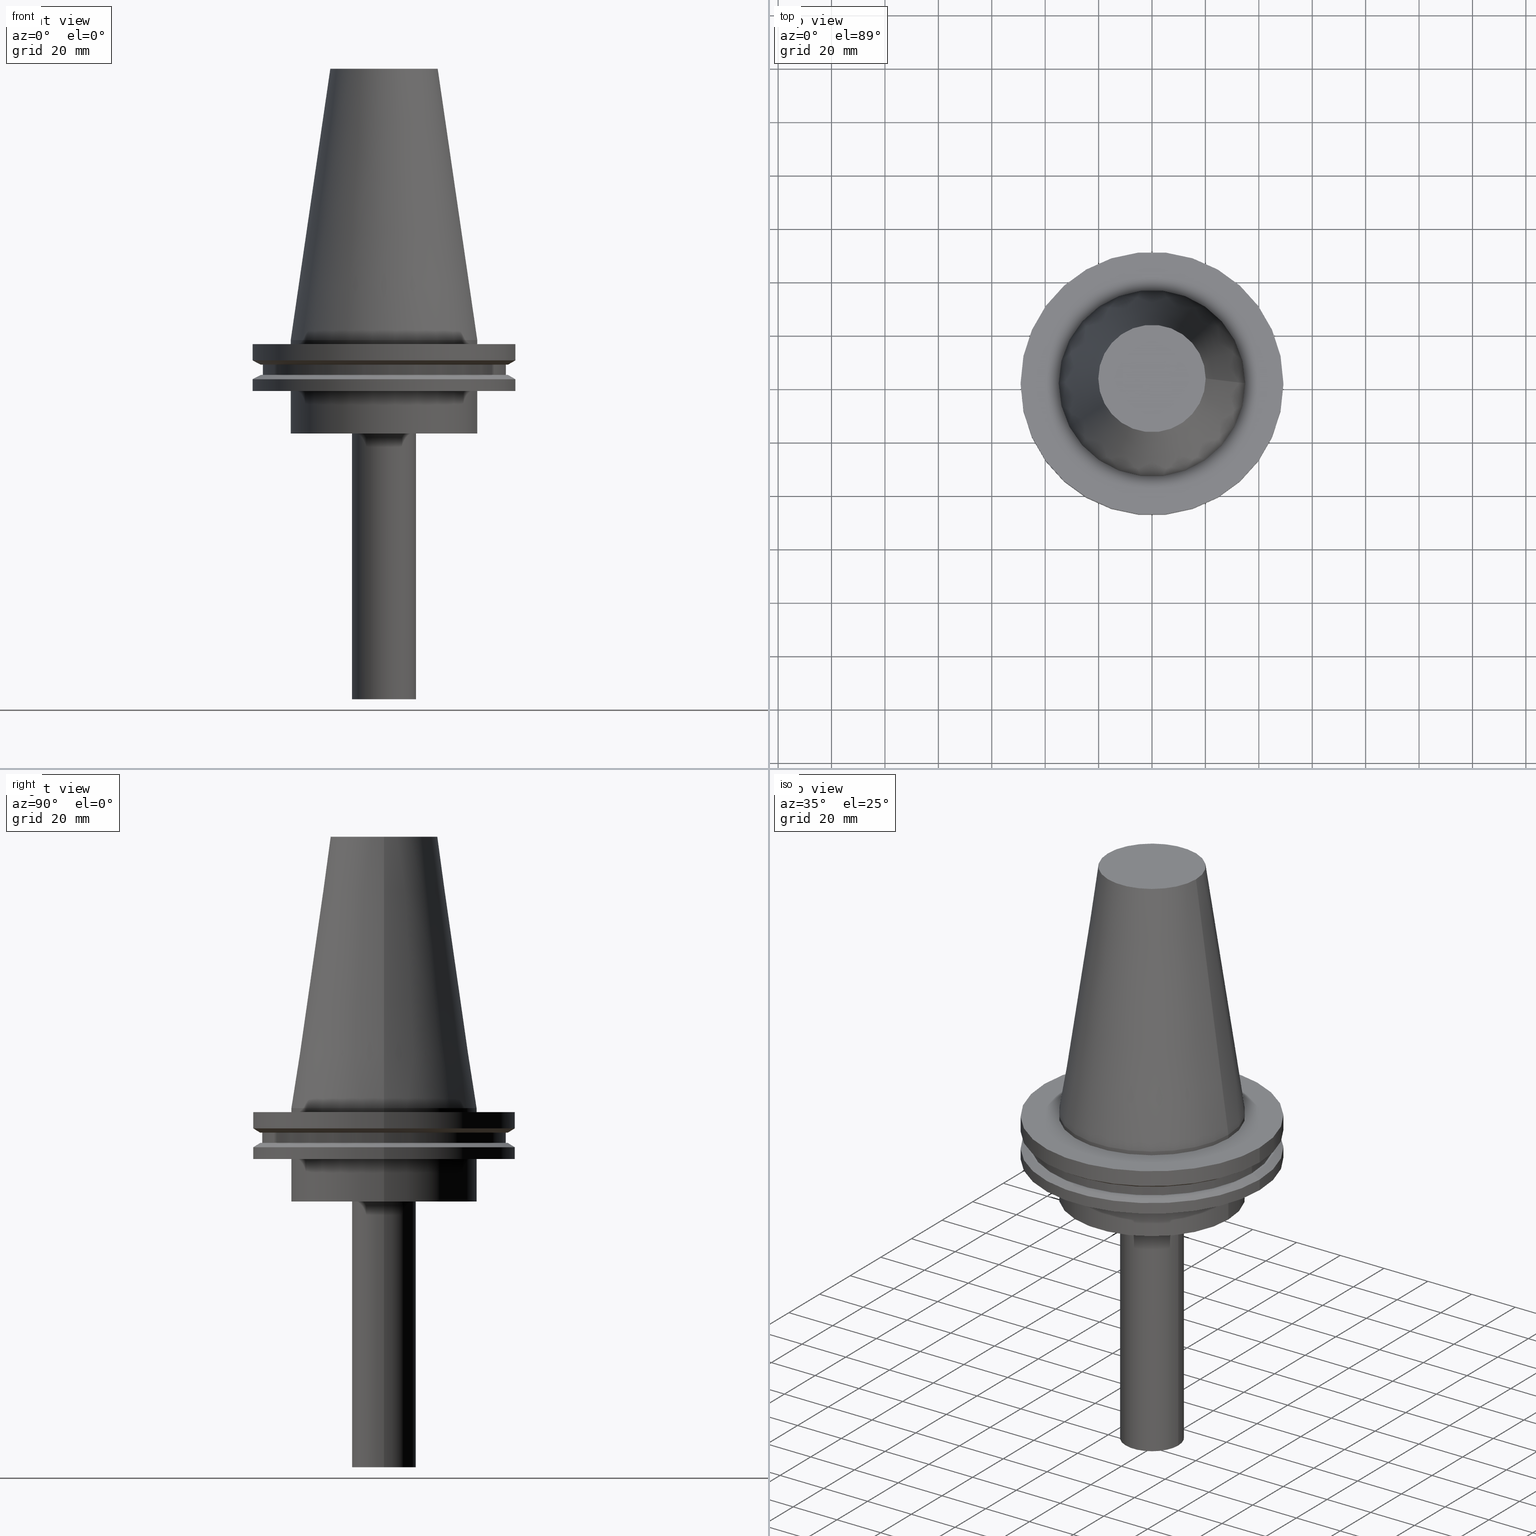
[diagram: canonical four-view strip — front | top / right | iso, engineering-drawing reading convention]
A machine part, canonical four-view strip (front | top / right | iso — engineering-drawing reading convention). The complete STEP part file that produces these views, byte-faithful:
ISO-10303-21;
HEADER;
FILE_DESCRIPTION (( 'STEP AP203' ),
    '1' );
FILE_NAME ('11.326.623.stp',
    '2022-03-09T14:49:54',
    ( '' ),
    ( '' ),
    'SwSTEP 2.0',
    'SolidWorks 2021',
    '' );
FILE_SCHEMA (( 'CONFIG_CONTROL_DESIGN' ));
ENDSEC;

DATA;
#1 = CARTESIAN_POINT ( 'NONE',  ( 0.000000000000000000, 0.000000000000000000, -134.5000000000000000 ) ) ;
#2 = VERTEX_POINT ( 'NONE', #346 ) ;
#3 = CARTESIAN_POINT ( 'NONE',  ( 46.43919780457007818, 0.000000000000000000, -13.05499999999999794 ) ) ;
#4 = ORIENTED_EDGE ( 'NONE', *, *, #171, .F. ) ;
#5 = CARTESIAN_POINT ( 'NONE',  ( 0.000000000000000000, 0.000000000000000000, -19.04999999999999716 ) ) ;
#6 = APPROVAL_ROLE ( '' ) ;
#7 = AXIS2_PLACEMENT_3D ( 'NONE', #81, #359, #76 ) ;
#8 = AXIS2_PLACEMENT_3D ( 'NONE', #104, #106, #229 ) ;
#9 = ORIENTED_EDGE ( 'NONE', *, *, #309, .T. ) ;
#10 = FACE_BOUND ( 'NONE', #365, .T. ) ;
#11 = CARTESIAN_POINT ( 'NONE',  ( 0.000000000000000000, 0.000000000000000000, 0.000000000000000000 ) ) ;
#12 = DIRECTION ( 'NONE',  ( 1.000000000000000000, 0.000000000000000000, 0.000000000000000000 ) ) ;
#13 = APPLICATION_PROTOCOL_DEFINITION ( 'international standard', 'config_control_design', 1994, #217 ) ;
#14 = FACE_BOUND ( 'NONE', #58, .T. ) ;
#15 = DIRECTION ( 'NONE',  ( 1.000000000000000000, 0.000000000000000000, 0.000000000000000000 ) ) ;
#16 = AXIS2_PLACEMENT_3D ( 'NONE', #11, #232, #37 ) ;
#17 = AXIS2_PLACEMENT_3D ( 'NONE', #115, #267, #113 ) ;
#18 = FACE_OUTER_BOUND ( 'NONE', #126, .T. ) ;
#19 = CIRCLE ( 'NONE', #296, 12.00000000000000000 ) ;
#20 = DIRECTION ( 'NONE',  ( 0.000000000000000000, -0.000000000000000000, 1.000000000000000000 ) ) ;
#21 = CYLINDRICAL_SURFACE ( 'NONE', #243, 49.21499999999999631 ) ;
#22 = CARTESIAN_POINT ( 'NONE',  ( 0.000000000000000000, 0.000000000000000000, 0.000000000000000000 ) ) ;
#23 = ADVANCED_FACE ( 'NONE', ( #321, #375 ), #70, .F. ) ;
#24 = CYLINDRICAL_SURFACE ( 'NONE', #17, 34.92499999999999716 ) ;
#25 = FACE_BOUND ( 'NONE', #125, .T. ) ;
#26 = EDGE_CURVE ( 'NONE', #281, #281, #19, .T. ) ;
#27 = CIRCLE ( 'NONE', #31, 49.21499999999998920 ) ;
#28 = CIRCLE ( 'NONE', #371, 34.92499999999999005 ) ;
#29 = VERTEX_POINT ( 'NONE', #88 ) ;
#30 = CIRCLE ( 'NONE', #55, 20.10819343178871321 ) ;
#31 = AXIS2_PLACEMENT_3D ( 'NONE', #234, #207, #112 ) ;
#32 = PLANE ( 'NONE',  #341 ) ;
#33 = VERTEX_POINT ( 'NONE', #155 ) ;
#34 = VERTEX_POINT ( 'NONE', #3 ) ;
#35 = DIRECTION ( 'NONE',  ( 1.000000000000000000, 0.000000000000000000, 0.000000000000000000 ) ) ;
#36 = FACE_BOUND ( 'NONE', #288, .T. ) ;
#37 = DIRECTION ( 'NONE',  ( 1.000000000000000000, 0.000000000000000000, 0.000000000000000000 ) ) ;
#38 = DIRECTION ( 'NONE',  ( 1.000000000000000000, 0.000000000000000000, 0.000000000000000000 ) ) ;
#39 = CARTESIAN_POINT ( 'NONE',  ( 49.21499999999999631, 0.000000000000000000, -1.499999999999987566 ) ) ;
#40 = MANIFOLD_SOLID_BREP ( 'CKB', #275 ) ;
#41 = EDGE_LOOP ( 'NONE', ( #90 ) ) ;
#42 = PERSON_AND_ORGANIZATION ( #201, #210 ) ;
#43 = CARTESIAN_POINT ( 'NONE',  ( 0.000000000000000000, 46.43919780457007818, -9.204999999999998295 ) ) ;
#44 = DIRECTION ( 'NONE',  ( 1.000000000000000000, 0.000000000000000000, 0.000000000000000000 ) ) ;
#45 = LOCAL_TIME ( 8, 49, 54.00000000000000000, #227 ) ;
#46 = FACE_BOUND ( 'NONE', #64, .T. ) ;
#47 = COORDINATED_UNIVERSAL_TIME_OFFSET ( 6, 0, .BEHIND. ) ;
#48 = ADVANCED_FACE ( 'NONE', ( #14, #139 ), #32, .F. ) ;
#49 = AXIS2_PLACEMENT_3D ( 'NONE', #326, #266, #206 ) ;
#50 = AXIS2_PLACEMENT_3D ( 'NONE', #79, #328, #51 ) ;
#51 = DIRECTION ( 'NONE',  ( 1.000000000000000000, 0.000000000000000000, 0.000000000000000000 ) ) ;
#52 = FACE_OUTER_BOUND ( 'NONE', #245, .T. ) ;
#53 = ADVANCED_FACE ( 'NONE', ( #160, #231 ), #352, .T. ) ;
#54 = FACE_OUTER_BOUND ( 'NONE', #101, .T. ) ;
#55 = AXIS2_PLACEMENT_3D ( 'NONE', #265, #343, #383 ) ;
#56 = DIRECTION ( 'NONE',  ( 1.000000000000000000, 0.000000000000000000, 0.000000000000000000 ) ) ;
#57 = CARTESIAN_POINT ( 'NONE',  ( 0.000000000000000000, 0.000000000000000000, -1.499999999999987566 ) ) ;
#58 = EDGE_LOOP ( 'NONE', ( #317 ) ) ;
#59 = AXIS2_PLACEMENT_3D ( 'NONE', #240, #169, #332 ) ;
#60 = EDGE_LOOP ( 'NONE', ( #87 ) ) ;
#61 = ORIENTED_EDGE ( 'NONE', *, *, #149, .F. ) ;
#62 = APPROVAL_PERSON_ORGANIZATION ( #197, #241, #161 ) ;
#63 = CARTESIAN_POINT ( 'NONE',  ( 34.92499999999999005, 0.000000000000000000, 0.000000000000000000 ) ) ;
#64 = EDGE_LOOP ( 'NONE', ( #323 ) ) ;
#65 = CARTESIAN_POINT ( 'NONE',  ( 49.21499999999998920, 0.000000000000000000, -14.65761014474876944 ) ) ;
#66 = CIRCLE ( 'NONE', #222, 34.92499999999999005 ) ;
#67 = EDGE_LOOP ( 'NONE', ( #9 ) ) ;
#68 = DIRECTION ( 'NONE',  ( -0.000000000000000000, -0.000000000000000000, 1.000000000000000000 ) ) ;
#69 =( NAMED_UNIT ( * ) SI_UNIT ( $, .STERADIAN. ) SOLID_ANGLE_UNIT ( ) );
#70 = PLANE ( 'NONE',  #132 ) ;
#71 = CARTESIAN_POINT ( 'NONE',  ( 49.21499999999998920, 0.000000000000000000, -19.04999999999999716 ) ) ;
#72 = EDGE_LOOP ( 'NONE', ( #180 ) ) ;
#73 = ORIENTED_EDGE ( 'NONE', *, *, #387, .T. ) ;
#74 = PLANE ( 'NONE',  #381 ) ;
#75 = PERSON_AND_ORGANIZATION_ROLE ( 'creator' ) ;
#76 = DIRECTION ( 'NONE',  ( 1.000000000000000000, 0.000000000000000000, 0.000000000000000000 ) ) ;
#77 = ADVANCED_FACE ( 'NONE', ( #133, #188 ), #342, .T. ) ;
#78 = PERSON_AND_ORGANIZATION_ROLE ( 'design_supplier' ) ;
#79 = CARTESIAN_POINT ( 'NONE',  ( 0.000000000000000000, 0.000000000000000000, -13.05499999999999794 ) ) ;
#80 = AXIS2_PLACEMENT_3D ( 'NONE', #392, #120, #212 ) ;
#81 = CARTESIAN_POINT ( 'NONE',  ( 0.000000000000000000, 0.000000000000000000, 101.5999999999999943 ) ) ;
#82 = AXIS2_PLACEMENT_3D ( 'NONE', #283, #249, #35 ) ;
#83 = DIRECTION ( 'NONE',  ( 0.000000000000000000, 0.000000000000000000, -1.000000000000000000 ) ) ;
#84 = DIRECTION ( 'NONE',  ( -0.000000000000000000, -0.000000000000000000, 1.000000000000000000 ) ) ;
#85 =( GEOMETRIC_REPRESENTATION_CONTEXT ( 3 ) GLOBAL_UNCERTAINTY_ASSIGNED_CONTEXT ( ( #299 ) ) GLOBAL_UNIT_ASSIGNED_CONTEXT ( ( #370, #165, #69 ) ) REPRESENTATION_CONTEXT ( 'NONE', 'WORKASPACE' ) );
#86 = PLANE ( 'NONE',  #100 ) ;
#87 = ORIENTED_EDGE ( 'NONE', *, *, #171, .T. ) ;
#88 = CARTESIAN_POINT ( 'NONE',  ( 34.92499999999999716, 0.000000000000000000, -35.00000000000000000 ) ) ;
#89 = PRODUCT ( '11.326.623', '11.326.623', '', ( #374 ) ) ;
#90 = ORIENTED_EDGE ( 'NONE', *, *, #93, .F. ) ;
#91 = CONICAL_SURFACE ( 'NONE', #49, 49.21499999999998920, 1.047197551196554333 ) ;
#92 = VERTEX_POINT ( 'NONE', #316 ) ;
#93 = EDGE_CURVE ( 'NONE', #318, #318, #357, .T. ) ;
#94 = ORIENTED_EDGE ( 'NONE', *, *, #291, .T. ) ;
#95 = PRODUCT_DEFINITION ( 'UNKNOWN', '', #360, #153 ) ;
#96 = ORIENTED_EDGE ( 'NONE', *, *, #309, .F. ) ;
#97 = CC_DESIGN_SECURITY_CLASSIFICATION ( #391, ( #360 ) ) ;
#98 = EDGE_LOOP ( 'NONE', ( #305 ) ) ;
#99 = EDGE_CURVE ( 'NONE', #33, #33, #237, .T. ) ;
#100 = AXIS2_PLACEMENT_3D ( 'NONE', #273, #304, #179 ) ;
#101 = EDGE_LOOP ( 'NONE', ( #215 ) ) ;
#102 = PERSON_AND_ORGANIZATION_ROLE ( 'design_owner' ) ;
#103 = APPROVAL ( #286, 'UNSPECIFIED' ) ;
#104 = CARTESIAN_POINT ( 'NONE',  ( 0.000000000000000000, 0.000000000000000000, -14.65761014474876944 ) ) ;
#105 = PERSON_AND_ORGANIZATION ( #201, #210 ) ;
#106 = DIRECTION ( 'NONE',  ( -0.000000000000000000, -0.000000000000000000, 1.000000000000000000 ) ) ;
#107 = DIRECTION ( 'NONE',  ( 0.000000000000000000, -0.000000000000000000, 1.000000000000000000 ) ) ;
#108 = ADVANCED_FACE ( 'NONE', ( #46, #54 ), #187, .T. ) ;
#109 = CARTESIAN_POINT ( 'NONE',  ( 0.000000000000000000, 0.000000000000000000, 101.5999999999999943 ) ) ;
#110 = CARTESIAN_POINT ( 'NONE',  ( 12.00000000000000000, 0.000000000000000000, -134.5000000000000000 ) ) ;
#111 = COORDINATED_UNIVERSAL_TIME_OFFSET ( 6, 0, .BEHIND. ) ;
#112 = DIRECTION ( 'NONE',  ( 1.000000000000000000, 0.000000000000000000, 0.000000000000000000 ) ) ;
#113 = DIRECTION ( 'NONE',  ( 1.000000000000000000, 0.000000000000000000, 0.000000000000000000 ) ) ;
#114 = ADVANCED_FACE ( 'NONE', ( #297, #389 ), #24, .T. ) ;
#115 = CARTESIAN_POINT ( 'NONE',  ( 0.000000000000000000, 0.000000000000000000, 101.5999999999999943 ) ) ;
#116 = CC_DESIGN_PERSON_AND_ORGANIZATION_ASSIGNMENT ( #260, #75, ( #360 ) ) ;
#117 = CARTESIAN_POINT ( 'NONE',  ( 0.000000000000000000, 0.000000000000000000, 101.5999999999999943 ) ) ;
#118 = FACE_OUTER_BOUND ( 'NONE', #157, .T. ) ;
#119 = ADVANCED_FACE ( 'NONE', ( #390, #268 ), #91, .T. ) ;
#120 = DIRECTION ( 'NONE',  ( 0.000000000000000000, 0.000000000000000000, -1.000000000000000000 ) ) ;
#121 = AXIS2_PLACEMENT_3D ( 'NONE', #358, #148, #386 ) ;
#122 = CIRCLE ( 'NONE', #141, 46.43919780457007818 ) ;
#123 = EDGE_LOOP ( 'NONE', ( #192 ) ) ;
#124 = CIRCLE ( 'NONE', #292, 34.92499999999999716 ) ;
#125 = EDGE_LOOP ( 'NONE', ( #366 ) ) ;
#126 = EDGE_LOOP ( 'NONE', ( #276 ) ) ;
#127 = DIRECTION ( 'NONE',  ( -0.000000000000000000, -0.000000000000000000, 1.000000000000000000 ) ) ;
#128 = DATE_AND_TIME ( #170, #204 ) ;
#129 = ORIENTED_EDGE ( 'NONE', *, *, #163, .F. ) ;
#130 = FACE_OUTER_BOUND ( 'NONE', #339, .T. ) ;
#131 = PERSON_AND_ORGANIZATION_ROLE ( 'creator' ) ;
#132 = AXIS2_PLACEMENT_3D ( 'NONE', #43, #194, #12 ) ;
#133 = FACE_OUTER_BOUND ( 'NONE', #372, .T. ) ;
#134 = VERTEX_POINT ( 'NONE', #71 ) ;
#135 = CALENDAR_DATE ( 2022, 9, 3 ) ;
#136 = APPLICATION_CONTEXT ( 'configuration controlled 3d designs of mechanical parts and assemblies' ) ;
#137 = CARTESIAN_POINT ( 'NONE',  ( 0.000000000000000000, 49.21499999999999631, -1.499999999999992895 ) ) ;
#138 = DATE_AND_TIME ( #322, #45 ) ;
#139 = FACE_OUTER_BOUND ( 'NONE', #60, .T. ) ;
#140 = DIRECTION ( 'NONE',  ( 1.000000000000000000, 0.000000000000000000, 0.000000000000000000 ) ) ;
#141 = AXIS2_PLACEMENT_3D ( 'NONE', #315, #68, #15 ) ;
#142 = DIRECTION ( 'NONE',  ( -0.000000000000000000, -0.000000000000000000, 1.000000000000000000 ) ) ;
#143 = ADVANCED_FACE ( 'NONE', ( #385, #202 ), #300, .F. ) ;
#144 = DIRECTION ( 'NONE',  ( -1.000000000000000000, 0.000000000000000000, 0.000000000000000000 ) ) ;
#145 = DIRECTION ( 'NONE',  ( -0.000000000000000000, -0.000000000000000000, 1.000000000000000000 ) ) ;
#146 = CARTESIAN_POINT ( 'NONE',  ( 0.000000000000000000, 49.21499999999998920, -19.04999999999999716 ) ) ;
#147 = PRODUCT_DEFINITION_SHAPE ( 'NONE', 'NONE',  #95 ) ;
#148 = DIRECTION ( 'NONE',  ( -0.000000000000000000, -0.000000000000000000, 1.000000000000000000 ) ) ;
#149 = EDGE_CURVE ( 'NONE', #2, #2, #211, .T. ) ;
#150 = FACE_OUTER_BOUND ( 'NONE', #98, .T. ) ;
#151 = ORIENTED_EDGE ( 'NONE', *, *, #149, .T. ) ;
#152 = APPROVAL ( #347, 'UNSPECIFIED' ) ;
#153 = DESIGN_CONTEXT ( 'detailed design', #217, 'design' ) ;
#154 = DIRECTION ( 'NONE',  ( -0.000000000000000000, -0.000000000000000000, 1.000000000000000000 ) ) ;
#155 = CARTESIAN_POINT ( 'NONE',  ( 46.43919780457007818, 0.000000000000000000, -9.204999999999991189 ) ) ;
#156 = CARTESIAN_POINT ( 'NONE',  ( 34.92499999999999716, 0.000000000000000000, -19.04999999999999716 ) ) ;
#157 = EDGE_LOOP ( 'NONE', ( #252 ) ) ;
#158 = DIRECTION ( 'NONE',  ( -0.000000000000000000, -0.000000000000000000, 1.000000000000000000 ) ) ;
#159 = APPLICATION_PROTOCOL_DEFINITION ( 'international standard', 'config_control_design', 1994, #136 ) ;
#160 = FACE_OUTER_BOUND ( 'NONE', #348, .T. ) ;
#161 = APPROVAL_ROLE ( '' ) ;
#162 = ORIENTED_EDGE ( 'NONE', *, *, #189, .T. ) ;
#163 = EDGE_CURVE ( 'NONE', #134, #134, #27, .T. ) ;
#164 = DIRECTION ( 'NONE',  ( -0.000000000000000000, -0.000000000000000000, 1.000000000000000000 ) ) ;
#165 =( NAMED_UNIT ( * ) PLANE_ANGLE_UNIT ( ) SI_UNIT ( $, .RADIAN. ) );
#166 = ORIENTED_EDGE ( 'NONE', *, *, #93, .T. ) ;
#167 = DIRECTION ( 'NONE',  ( 1.000000000000000000, 0.000000000000000000, 0.000000000000000000 ) ) ;
#168 = PERSON_AND_ORGANIZATION ( #201, #210 ) ;
#169 = DIRECTION ( 'NONE',  ( -0.000000000000000000, -0.000000000000000000, 1.000000000000000000 ) ) ;
#170 = CALENDAR_DATE ( 2022, 9, 3 ) ;
#171 = EDGE_CURVE ( 'NONE', #319, #319, #251, .T. ) ;
#172 = AXIS2_PLACEMENT_3D ( 'NONE', #369, #127, #223 ) ;
#173 = CARTESIAN_POINT ( 'NONE',  ( 0.000000000000000000, 0.000000000000000000, 0.000000000000000000 ) ) ;
#174 = CC_DESIGN_DATE_AND_TIME_ASSIGNMENT ( #203, #325, ( #95 ) ) ;
#175 = DIRECTION ( 'NONE',  ( -0.000000000000000000, -0.000000000000000000, 1.000000000000000000 ) ) ;
#176 = CYLINDRICAL_SURFACE ( 'NONE', #7, 49.21499999999998920 ) ;
#177 = APPROVAL_PERSON_ORGANIZATION ( #320, #152, #6 ) ;
#178 = DIRECTION ( 'NONE',  ( 1.000000000000000000, 0.000000000000000000, 0.000000000000000000 ) ) ;
#179 = DIRECTION ( 'NONE',  ( -1.000000000000000000, 0.000000000000000000, -0.000000000000000000 ) ) ;
#180 = ORIENTED_EDGE ( 'NONE', *, *, #253, .T. ) ;
#181 = ADVANCED_FACE ( 'NONE', ( #271, #118 ), #176, .T. ) ;
#182 = AXIS2_PLACEMENT_3D ( 'NONE', #238, #233, #354 ) ;
#183 = VERTEX_POINT ( 'NONE', #63 ) ;
#184 = CC_DESIGN_PERSON_AND_ORGANIZATION_ASSIGNMENT ( #224, #131, ( #95 ) ) ;
#185 = EDGE_LOOP ( 'NONE', ( #73 ) ) ;
#186 = CARTESIAN_POINT ( 'NONE',  ( 45.64500000000000313, 0.000000000000000000, -13.05499999999999794 ) ) ;
#187 = CONICAL_SURFACE ( 'NONE', #313, 34.92499999999999005, 0.1448138465474119452 ) ;
#188 = FACE_OUTER_BOUND ( 'NONE', #72, .T. ) ;
#189 = EDGE_CURVE ( 'NONE', #259, #259, #235, .T. ) ;
#190 = FACE_OUTER_BOUND ( 'NONE', #244, .T. ) ;
#191 = CARTESIAN_POINT ( 'NONE',  ( 49.21500000000000341, 0.000000000000000000, -7.602389855251287187 ) ) ;
#192 = ORIENTED_EDGE ( 'NONE', *, *, #364, .T. ) ;
#193 = DIRECTION ( 'NONE',  ( 0.000000000000000000, -0.000000000000000000, 1.000000000000000000 ) ) ;
#194 = DIRECTION ( 'NONE',  ( 0.000000000000000000, -0.000000000000000000, 1.000000000000000000 ) ) ;
#195 = ORIENTED_EDGE ( 'NONE', *, *, #247, .F. ) ;
#196 = FACE_OUTER_BOUND ( 'NONE', #368, .T. ) ;
#197 = PERSON_AND_ORGANIZATION ( #201, #210 ) ;
#198 = EDGE_LOOP ( 'NONE', ( #166 ) ) ;
#199 = CARTESIAN_POINT ( 'NONE',  ( 0.000000000000000000, 34.92499999999999716, -35.00000000000000000 ) ) ;
#200 = APPROVAL_DATE_TIME ( #284, #152 ) ;
#201 = PERSON ( 'UNSPECIFIED', 'UNSPECIFIED', 'UNSPECIFIED', ('UNSPECIFIED'), ('UNSPECIFIED'), ('UNSPECIFIED') ) ;
#202 = FACE_BOUND ( 'NONE', #67, .T. ) ;
#203 = DATE_AND_TIME ( #262, #263 ) ;
#204 = LOCAL_TIME ( 8, 49, 54.00000000000000000, #47 ) ;
#205 = FACE_OUTER_BOUND ( 'NONE', #362, .T. ) ;
#206 = DIRECTION ( 'NONE',  ( -1.000000000000000000, 0.000000000000000000, 0.000000000000000000 ) ) ;
#207 = DIRECTION ( 'NONE',  ( -0.000000000000000000, -0.000000000000000000, 1.000000000000000000 ) ) ;
#208 = ADVANCED_FACE ( 'NONE', ( #52, #18 ), #293, .T. ) ;
#209 = CARTESIAN_POINT ( 'NONE',  ( 0.000000000000000000, 0.000000000000000000, -1.499999999999987566 ) ) ;
#210 = ORGANIZATION ( 'UNSPECIFIED', 'UNSPECIFIED', '' ) ;
#211 = CIRCLE ( 'NONE', #121, 12.00000000000000000 ) ;
#212 = DIRECTION ( 'NONE',  ( -1.000000000000000000, 0.000000000000000000, -0.000000000000000000 ) ) ;
#213 = CC_DESIGN_DATE_AND_TIME_ASSIGNMENT ( #138, #380, ( #391 ) ) ;
#214 = VERTEX_POINT ( 'NONE', #186 ) ;
#215 = ORIENTED_EDGE ( 'NONE', *, *, #239, .T. ) ;
#216 = VERTEX_POINT ( 'NONE', #337 ) ;
#217 = APPLICATION_CONTEXT ( 'configuration controlled 3d designs of mechanical parts and assemblies' ) ;
#218 = CC_DESIGN_APPROVAL ( #103, ( #391 ) ) ;
#219 = ADVANCED_FACE ( 'NONE', ( #301, #205 ), #21, .T. ) ;
#220 = ORIENTED_EDGE ( 'NONE', *, *, #239, .F. ) ;
#221 = DIRECTION ( 'NONE',  ( -1.000000000000000000, 0.000000000000000000, -0.000000000000000000 ) ) ;
#222 = AXIS2_PLACEMENT_3D ( 'NONE', #22, #142, #388 ) ;
#223 = DIRECTION ( 'NONE',  ( 1.000000000000000000, 0.000000000000000000, 0.000000000000000000 ) ) ;
#224 = PERSON_AND_ORGANIZATION ( #201, #210 ) ;
#225 = ORIENTED_EDGE ( 'NONE', *, *, #99, .T. ) ;
#226 = EDGE_LOOP ( 'NONE', ( #4 ) ) ;
#227 = COORDINATED_UNIVERSAL_TIME_OFFSET ( 6, 0, .BEHIND. ) ;
#228 = CC_DESIGN_APPROVAL ( #152, ( #95 ) ) ;
#229 = DIRECTION ( 'NONE',  ( 1.000000000000000000, 0.000000000000000000, 0.000000000000000000 ) ) ;
#230 = COORDINATED_UNIVERSAL_TIME_OFFSET ( 6, 0, .BEHIND. ) ;
#231 = FACE_OUTER_BOUND ( 'NONE', #336, .T. ) ;
#232 = DIRECTION ( 'NONE',  ( 0.000000000000000000, 0.000000000000000000, 1.000000000000000000 ) ) ;
#233 = DIRECTION ( 'NONE',  ( -0.000000000000000000, -0.000000000000000000, 1.000000000000000000 ) ) ;
#234 = CARTESIAN_POINT ( 'NONE',  ( 0.000000000000000000, 0.000000000000000000, -19.04999999999999716 ) ) ;
#235 = CIRCLE ( 'NONE', #59, 49.21500000000000341 ) ;
#236 = AXIS2_PLACEMENT_3D ( 'NONE', #173, #175, #334 ) ;
#237 = CIRCLE ( 'NONE', #393, 46.43919780457007818 ) ;
#238 = CARTESIAN_POINT ( 'NONE',  ( 0.000000000000000000, 0.000000000000000000, -9.204999999999991189 ) ) ;
#239 = EDGE_CURVE ( 'NONE', #183, #183, #66, .T. ) ;
#240 = CARTESIAN_POINT ( 'NONE',  ( 0.000000000000000000, 0.000000000000000000, -7.602389855251287187 ) ) ;
#241 = APPROVAL ( #353, 'UNSPECIFIED' ) ;
#242 = CARTESIAN_POINT ( 'NONE',  ( 0.000000000000000000, 0.000000000000000000, 0.000000000000000000 ) ) ;
#243 = AXIS2_PLACEMENT_3D ( 'NONE', #117, #145, #56 ) ;
#244 = EDGE_LOOP ( 'NONE', ( #261 ) ) ;
#245 = EDGE_LOOP ( 'NONE', ( #61 ) ) ;
#246 = ORIENTED_EDGE ( 'NONE', *, *, #26, .F. ) ;
#247 = EDGE_CURVE ( 'NONE', #92, #92, #294, .T. ) ;
#248 = ORIENTED_EDGE ( 'NONE', *, *, #247, .T. ) ;
#249 = DIRECTION ( 'NONE',  ( -0.000000000000000000, -0.000000000000000000, 1.000000000000000000 ) ) ;
#250 = APPROVAL_DATE_TIME ( #128, #103 ) ;
#251 = CIRCLE ( 'NONE', #307, 49.21499999999999631 ) ;
#252 = ORIENTED_EDGE ( 'NONE', *, *, #163, .T. ) ;
#253 = EDGE_CURVE ( 'NONE', #214, #214, #330, .T. ) ;
#254 = AXIS2_PLACEMENT_3D ( 'NONE', #199, #193, #44 ) ;
#255 = PLANE ( 'NONE',  #254 ) ;
#256 = DATE_AND_TIME ( #135, #287 ) ;
#257 = AXIS2_PLACEMENT_3D ( 'NONE', #109, #154, #280 ) ;
#258 = ORIENTED_EDGE ( 'NONE', *, *, #99, .F. ) ;
#259 = VERTEX_POINT ( 'NONE', #191 ) ;
#260 = PERSON_AND_ORGANIZATION ( #201, #210 ) ;
#261 = ORIENTED_EDGE ( 'NONE', *, *, #189, .F. ) ;
#262 = CALENDAR_DATE ( 2022, 9, 3 ) ;
#263 = LOCAL_TIME ( 8, 49, 54.00000000000000000, #111 ) ;
#264 = ORIENTED_EDGE ( 'NONE', *, *, #387, .F. ) ;
#265 = CARTESIAN_POINT ( 'NONE',  ( 0.000000000000000000, 0.000000000000000000, 101.5999999999999801 ) ) ;
#266 = DIRECTION ( 'NONE',  ( 0.000000000000000000, 0.000000000000000000, -1.000000000000000000 ) ) ;
#267 = DIRECTION ( 'NONE',  ( -0.000000000000000000, -0.000000000000000000, 1.000000000000000000 ) ) ;
#268 = FACE_OUTER_BOUND ( 'NONE', #198, .T. ) ;
#269 = ADVANCED_FACE ( 'NONE', ( #25, #361 ), #86, .F. ) ;
#270 = DIRECTION ( 'NONE',  ( 1.000000000000000000, 0.000000000000000000, 0.000000000000000000 ) ) ;
#271 = FACE_OUTER_BOUND ( 'NONE', #41, .T. ) ;
#272 = APPROVAL_PERSON_ORGANIZATION ( #42, #103, #327 ) ;
#273 = CARTESIAN_POINT ( 'NONE',  ( 0.000000000000000000, 45.64500000000000313, -13.05499999999999794 ) ) ;
#274 = CIRCLE ( 'NONE', #308, 34.92499999999999716 ) ;
#275 = CLOSED_SHELL ( 'NONE', ( #108, #277, #331, #114, #143, #181, #119, #269, #77, #23, #349, #219, #48, #53, #208, #367 ) ) ;
#276 = ORIENTED_EDGE ( 'NONE', *, *, #26, .T. ) ;
#277 = ADVANCED_FACE ( 'NONE', ( #150 ), #335, .F. ) ;
#278 = CARTESIAN_POINT ( 'NONE',  ( 20.10819343178871321, 0.000000000000000000, 101.5999999999999801 ) ) ;
#279 = CC_DESIGN_PERSON_AND_ORGANIZATION_ASSIGNMENT ( #105, #290, ( #391 ) ) ;
#280 = DIRECTION ( 'NONE',  ( 1.000000000000000000, 0.000000000000000000, 0.000000000000000000 ) ) ;
#281 = VERTEX_POINT ( 'NONE', #110 ) ;
#282 = EDGE_LOOP ( 'NONE', ( #248 ) ) ;
#283 = CARTESIAN_POINT ( 'NONE',  ( 0.000000000000000000, 0.000000000000000000, 101.5999999999999943 ) ) ;
#284 = DATE_AND_TIME ( #295, #395 ) ;
#285 = EDGE_LOOP ( 'NONE', ( #310 ) ) ;
#286 = APPROVAL_STATUS ( 'not_yet_approved' ) ;
#287 = LOCAL_TIME ( 8, 49, 54.00000000000000000, #351 ) ;
#288 = EDGE_LOOP ( 'NONE', ( #151 ) ) ;
#289 = CARTESIAN_POINT ( 'NONE',  ( 0.000000000000000000, 12.00000000000000000, -134.5000000000000000 ) ) ;
#290 = PERSON_AND_ORGANIZATION_ROLE ( 'classification_officer' ) ;
#291 = EDGE_CURVE ( 'NONE', #216, #216, #28, .T. ) ;
#292 = AXIS2_PLACEMENT_3D ( 'NONE', #373, #164, #140 ) ;
#293 = CYLINDRICAL_SURFACE ( 'NONE', #236, 12.00000000000000000 ) ;
#294 = CIRCLE ( 'NONE', #182, 45.64500000000000313 ) ;
#295 = CALENDAR_DATE ( 2022, 9, 3 ) ;
#296 = AXIS2_PLACEMENT_3D ( 'NONE', #1, #379, #38 ) ;
#297 = FACE_OUTER_BOUND ( 'NONE', #345, .T. ) ;
#298 = SHAPE_DEFINITION_REPRESENTATION ( #147, #312 ) ;
#299 = UNCERTAINTY_MEASURE_WITH_UNIT (LENGTH_MEASURE( 1.000000000000000082E-05 ), #370, 'distance_accuracy_value', 'NONE');
#300 = PLANE ( 'NONE',  #329 ) ;
#301 = FACE_OUTER_BOUND ( 'NONE', #226, .T. ) ;
#302 = CC_DESIGN_PERSON_AND_ORGANIZATION_ASSIGNMENT ( #168, #78, ( #360 ) ) ;
#303 = DIRECTION ( 'NONE',  ( -0.000000000000000000, -0.000000000000000000, 1.000000000000000000 ) ) ;
#304 = DIRECTION ( 'NONE',  ( 0.000000000000000000, 0.000000000000000000, -1.000000000000000000 ) ) ;
#305 = ORIENTED_EDGE ( 'NONE', *, *, #394, .T. ) ;
#306 = EDGE_LOOP ( 'NONE', ( #258 ) ) ;
#307 = AXIS2_PLACEMENT_3D ( 'NONE', #209, #303, #355 ) ;
#308 = AXIS2_PLACEMENT_3D ( 'NONE', #5, #376, #167 ) ;
#309 = EDGE_CURVE ( 'NONE', #311, #311, #274, .T. ) ;
#310 = ORIENTED_EDGE ( 'NONE', *, *, #364, .F. ) ;
#311 = VERTEX_POINT ( 'NONE', #156 ) ;
#312 = ADVANCED_BREP_SHAPE_REPRESENTATION ( '11.326.623', ( #40, #16 ), #85 ) ;
#313 = AXIS2_PLACEMENT_3D ( 'NONE', #242, #83, #144 ) ;
#314 = EDGE_LOOP ( 'NONE', ( #129 ) ) ;
#315 = CARTESIAN_POINT ( 'NONE',  ( 0.000000000000000000, 0.000000000000000000, -13.05499999999999794 ) ) ;
#316 = CARTESIAN_POINT ( 'NONE',  ( 45.64500000000000313, 0.000000000000000000, -9.204999999999991189 ) ) ;
#317 = ORIENTED_EDGE ( 'NONE', *, *, #291, .F. ) ;
#318 = VERTEX_POINT ( 'NONE', #65 ) ;
#319 = VERTEX_POINT ( 'NONE', #39 ) ;
#320 = PERSON_AND_ORGANIZATION ( #201, #210 ) ;
#321 = FACE_OUTER_BOUND ( 'NONE', #306, .T. ) ;
#322 = CALENDAR_DATE ( 2022, 9, 3 ) ;
#323 = ORIENTED_EDGE ( 'NONE', *, *, #394, .F. ) ;
#324 = DIRECTION ( 'NONE',  ( 1.000000000000000000, 0.000000000000000000, 0.000000000000000000 ) ) ;
#325 = DATE_TIME_ROLE ( 'creation_date' ) ;
#326 = CARTESIAN_POINT ( 'NONE',  ( 0.000000000000000000, 0.000000000000000000, -14.65761014474876944 ) ) ;
#327 = APPROVAL_ROLE ( '' ) ;
#328 = DIRECTION ( 'NONE',  ( -0.000000000000000000, -0.000000000000000000, 1.000000000000000000 ) ) ;
#329 = AXIS2_PLACEMENT_3D ( 'NONE', #146, #20, #270 ) ;
#330 = CIRCLE ( 'NONE', #50, 45.64500000000000313 ) ;
#331 = ADVANCED_FACE ( 'NONE', ( #36, #130 ), #255, .F. ) ;
#332 = DIRECTION ( 'NONE',  ( 1.000000000000000000, 0.000000000000000000, 0.000000000000000000 ) ) ;
#333 = CC_DESIGN_PERSON_AND_ORGANIZATION_ASSIGNMENT ( #384, #102, ( #89 ) ) ;
#334 = DIRECTION ( 'NONE',  ( 1.000000000000000000, 0.000000000000000000, 0.000000000000000000 ) ) ;
#335 = PLANE ( 'NONE',  #80 ) ;
#336 = EDGE_LOOP ( 'NONE', ( #94 ) ) ;
#337 = CARTESIAN_POINT ( 'NONE',  ( 34.92499999999999005, 0.000000000000000000, -1.499999999999987566 ) ) ;
#338 = CC_DESIGN_APPROVAL ( #241, ( #360 ) ) ;
#339 = EDGE_LOOP ( 'NONE', ( #264 ) ) ;
#340 = DIRECTION ( 'NONE',  ( 1.000000000000000000, 0.000000000000000000, 0.000000000000000000 ) ) ;
#341 = AXIS2_PLACEMENT_3D ( 'NONE', #137, #382, #221 ) ;
#342 = CYLINDRICAL_SURFACE ( 'NONE', #82, 45.64500000000000313 ) ;
#343 = DIRECTION ( 'NONE',  ( -0.000000000000000000, -0.000000000000000000, 1.000000000000000000 ) ) ;
#344 = APPROVAL_DATE_TIME ( #256, #241 ) ;
#345 = EDGE_LOOP ( 'NONE', ( #96 ) ) ;
#346 = CARTESIAN_POINT ( 'NONE',  ( 12.00000000000000000, 0.000000000000000000, -35.00000000000000000 ) ) ;
#347 = APPROVAL_STATUS ( 'not_yet_approved' ) ;
#348 = EDGE_LOOP ( 'NONE', ( #220 ) ) ;
#349 = ADVANCED_FACE ( 'NONE', ( #190, #10 ), #356, .T. ) ;
#350 = CARTESIAN_POINT ( 'NONE',  ( 0.000000000000000000, 0.000000000000000000, -9.204999999999991189 ) ) ;
#351 = COORDINATED_UNIVERSAL_TIME_OFFSET ( 6, 0, .BEHIND. ) ;
#352 = CYLINDRICAL_SURFACE ( 'NONE', #257, 34.92499999999999005 ) ;
#353 = APPROVAL_STATUS ( 'not_yet_approved' ) ;
#354 = DIRECTION ( 'NONE',  ( 1.000000000000000000, 0.000000000000000000, 0.000000000000000000 ) ) ;
#355 = DIRECTION ( 'NONE',  ( 1.000000000000000000, 0.000000000000000000, 0.000000000000000000 ) ) ;
#356 = CONICAL_SURFACE ( 'NONE', #172, 46.43919780457007818, 1.047197551196575205 ) ;
#357 = CIRCLE ( 'NONE', #8, 49.21499999999998920 ) ;
#358 = CARTESIAN_POINT ( 'NONE',  ( 0.000000000000000000, 0.000000000000000000, -35.00000000000000000 ) ) ;
#359 = DIRECTION ( 'NONE',  ( -0.000000000000000000, -0.000000000000000000, 1.000000000000000000 ) ) ;
#360 = PRODUCT_DEFINITION_FORMATION_WITH_SPECIFIED_SOURCE ( 'ANY', '', #89, .NOT_KNOWN. ) ;
#361 = FACE_OUTER_BOUND ( 'NONE', #123, .T. ) ;
#362 = EDGE_LOOP ( 'NONE', ( #162 ) ) ;
#363 = VERTEX_POINT ( 'NONE', #278 ) ;
#364 = EDGE_CURVE ( 'NONE', #34, #34, #122, .T. ) ;
#365 = EDGE_LOOP ( 'NONE', ( #225 ) ) ;
#366 = ORIENTED_EDGE ( 'NONE', *, *, #253, .F. ) ;
#367 = ADVANCED_FACE ( 'NONE', ( #196 ), #74, .F. ) ;
#368 = EDGE_LOOP ( 'NONE', ( #246 ) ) ;
#369 = CARTESIAN_POINT ( 'NONE',  ( 0.000000000000000000, 0.000000000000000000, -9.204999999999991189 ) ) ;
#370 =( LENGTH_UNIT ( ) NAMED_UNIT ( * ) SI_UNIT ( .MILLI., .METRE. ) );
#371 = AXIS2_PLACEMENT_3D ( 'NONE', #57, #158, #340 ) ;
#372 = EDGE_LOOP ( 'NONE', ( #195 ) ) ;
#373 = CARTESIAN_POINT ( 'NONE',  ( 0.000000000000000000, 0.000000000000000000, -35.00000000000000000 ) ) ;
#374 = MECHANICAL_CONTEXT ( 'NONE', #136, 'mechanical' ) ;
#375 = FACE_BOUND ( 'NONE', #282, .T. ) ;
#376 = DIRECTION ( 'NONE',  ( -0.000000000000000000, -0.000000000000000000, 1.000000000000000000 ) ) ;
#377 = SECURITY_CLASSIFICATION_LEVEL ( 'unclassified' ) ;
#378 = PRODUCT_RELATED_PRODUCT_CATEGORY ( 'detail', '', ( #89 ) ) ;
#379 = DIRECTION ( 'NONE',  ( -0.000000000000000000, -0.000000000000000000, 1.000000000000000000 ) ) ;
#380 = DATE_TIME_ROLE ( 'classification_date' ) ;
#381 = AXIS2_PLACEMENT_3D ( 'NONE', #289, #107, #324 ) ;
#382 = DIRECTION ( 'NONE',  ( 0.000000000000000000, 0.000000000000000000, -1.000000000000000000 ) ) ;
#383 = DIRECTION ( 'NONE',  ( 1.000000000000000000, 0.000000000000000000, 0.000000000000000000 ) ) ;
#384 = PERSON_AND_ORGANIZATION ( #201, #210 ) ;
#385 = FACE_OUTER_BOUND ( 'NONE', #314, .T. ) ;
#386 = DIRECTION ( 'NONE',  ( 1.000000000000000000, 0.000000000000000000, 0.000000000000000000 ) ) ;
#387 = EDGE_CURVE ( 'NONE', #29, #29, #124, .T. ) ;
#388 = DIRECTION ( 'NONE',  ( 1.000000000000000000, 0.000000000000000000, 0.000000000000000000 ) ) ;
#389 = FACE_OUTER_BOUND ( 'NONE', #185, .T. ) ;
#390 = FACE_BOUND ( 'NONE', #285, .T. ) ;
#391 = SECURITY_CLASSIFICATION ( '', '', #377 ) ;
#392 = CARTESIAN_POINT ( 'NONE',  ( 0.000000000000000000, 20.10819343178871321, 101.5999999999999943 ) ) ;
#393 = AXIS2_PLACEMENT_3D ( 'NONE', #350, #84, #178 ) ;
#394 = EDGE_CURVE ( 'NONE', #363, #363, #30, .T. ) ;
#395 = LOCAL_TIME ( 8, 49, 54.00000000000000000, #230 ) ;
ENDSEC;
END-ISO-10303-21;
